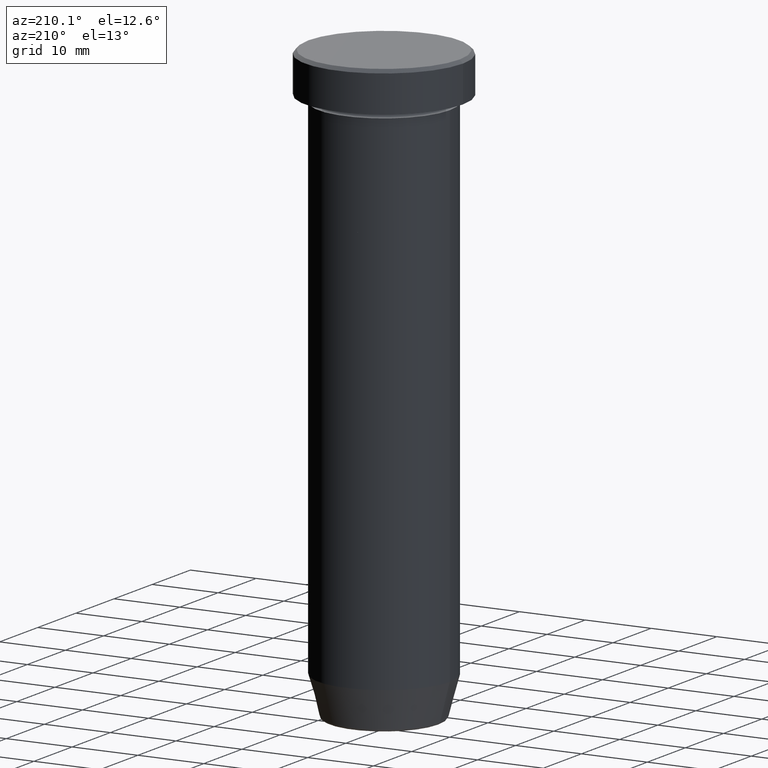
[diagram: clean part render]
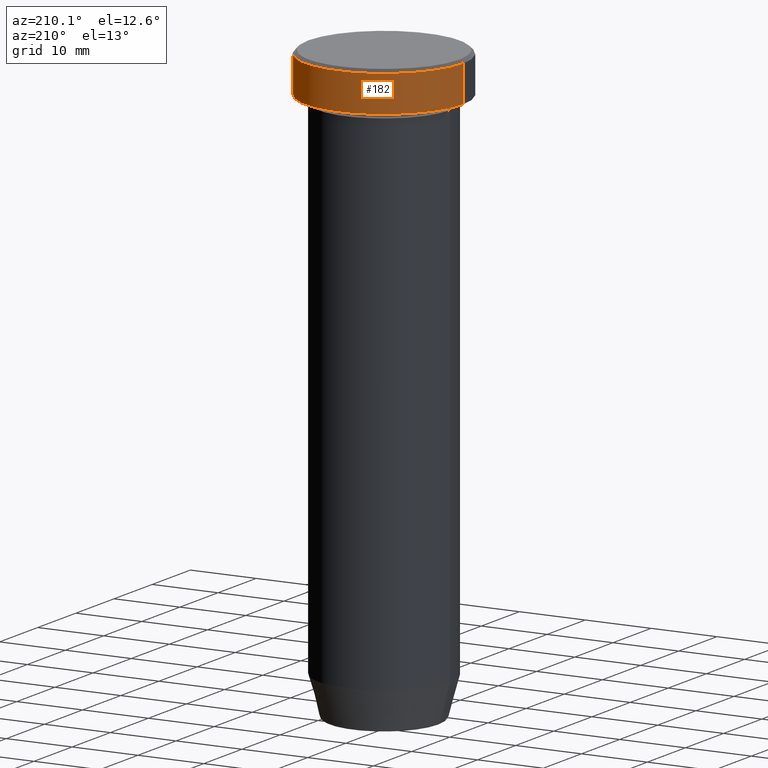
[diagram: same view with one face highlighted and labeled with its STEP entity id]
A machine part, auxiliary view. The second image highlights one B-rep face of the part: STEP entity #182.
In plain terms, the highlighted cylindrical surface (partial cylindrical patch) has radius 12 mm, axis along (-0, -0, 1).
Its self-contained STEP definition (entity closure, byte-faithful):
#2 = DIRECTION ( 'NONE',  ( 0.000000000000000000, 0.000000000000000000, -1.000000000000000000 ) ) ;
#13 = ORIENTED_EDGE ( 'NONE', *, *, #215, .T. ) ;
#32 = DIRECTION ( 'NONE',  ( 1.000000000000000000, 0.000000000000000000, 0.000000000000000000 ) ) ;
#51 = DIRECTION ( 'NONE',  ( -0.000000000000000000, -0.000000000000000000, 1.000000000000000000 ) ) ;
#64 = CARTESIAN_POINT ( 'NONE',  ( 12.00000000000000000, 0.000000000000000000, -0.4999999999999987232 ) ) ;
#69 = ORIENTED_EDGE ( 'NONE', *, *, #206, .T. ) ;
#76 = DIRECTION ( 'NONE',  ( -0.000000000000000000, -0.000000000000000000, 1.000000000000000000 ) ) ;
#80 = CARTESIAN_POINT ( 'NONE',  ( 0.000000000000000000, 0.000000000000000000, -5.999999999999999112 ) ) ;
#84 = CIRCLE ( 'NONE', #124, 12.00000000000000000 ) ;
#106 = CARTESIAN_POINT ( 'NONE',  ( 12.00000000000000000, 0.000000000000000000, -5.999999999999999112 ) ) ;
#123 = DIRECTION ( 'NONE',  ( -0.000000000000000000, -0.000000000000000000, 1.000000000000000000 ) ) ;
#124 = AXIS2_PLACEMENT_3D ( 'NONE', #560, #2, #433 ) ;
#182 = ADVANCED_FACE ( 'NONE', ( #248 ), #567, .T. ) ;
#183 = LINE ( 'NONE', #519, #361 ) ;
#206 = EDGE_CURVE ( 'NONE', #237, #431, #84, .T. ) ;
#215 = EDGE_CURVE ( 'NONE', #273, #237, #183, .T. ) ;
#234 = AXIS2_PLACEMENT_3D ( 'NONE', #80, #76, #32 ) ;
#237 = VERTEX_POINT ( 'NONE', #509 ) ;
#248 = FACE_OUTER_BOUND ( 'NONE', #575, .T. ) ;
#259 = ORIENTED_EDGE ( 'NONE', *, *, #539, .T. ) ;
#273 = VERTEX_POINT ( 'NONE', #374 ) ;
#341 = CIRCLE ( 'NONE', #234, 12.00000000000000000 ) ;
#355 = LINE ( 'NONE', #542, #505 ) ;
#361 = VECTOR ( 'NONE', #478, 1000.000000000000000 ) ;
#373 = VERTEX_POINT ( 'NONE', #106 ) ;
#374 = CARTESIAN_POINT ( 'NONE',  ( -12.00000000000000000, 1.469576158976823947E-15, -5.999999999999999112 ) ) ;
#409 = ORIENTED_EDGE ( 'NONE', *, *, #565, .F. ) ;
#430 = CARTESIAN_POINT ( 'NONE',  ( 0.000000000000000000, 0.000000000000000000, 0.000000000000000000 ) ) ;
#431 = VERTEX_POINT ( 'NONE', #64 ) ;
#433 = DIRECTION ( 'NONE',  ( 1.000000000000000000, 0.000000000000000000, 0.000000000000000000 ) ) ;
#449 = AXIS2_PLACEMENT_3D ( 'NONE', #430, #51, #558 ) ;
#478 = DIRECTION ( 'NONE',  ( -0.000000000000000000, -0.000000000000000000, 1.000000000000000000 ) ) ;
#505 = VECTOR ( 'NONE', #123, 1000.000000000000000 ) ;
#509 = CARTESIAN_POINT ( 'NONE',  ( -12.00000000000000000, 1.469576158976823947E-15, -0.4999999999999987232 ) ) ;
#519 = CARTESIAN_POINT ( 'NONE',  ( -12.00000000000000000, 1.469576158976823947E-15, 0.000000000000000000 ) ) ;
#539 = EDGE_CURVE ( 'NONE', #373, #273, #341, .T. ) ;
#542 = CARTESIAN_POINT ( 'NONE',  ( 12.00000000000000000, 0.000000000000000000, 0.000000000000000000 ) ) ;
#558 = DIRECTION ( 'NONE',  ( 1.000000000000000000, 0.000000000000000000, 0.000000000000000000 ) ) ;
#560 = CARTESIAN_POINT ( 'NONE',  ( 0.000000000000000000, 0.000000000000000000, -0.4999999999999987232 ) ) ;
#565 = EDGE_CURVE ( 'NONE', #373, #431, #355, .T. ) ;
#567 = CYLINDRICAL_SURFACE ( 'NONE', #449, 12.00000000000000000 ) ;
#575 = EDGE_LOOP ( 'NONE', ( #259, #13, #69, #409 ) ) ;